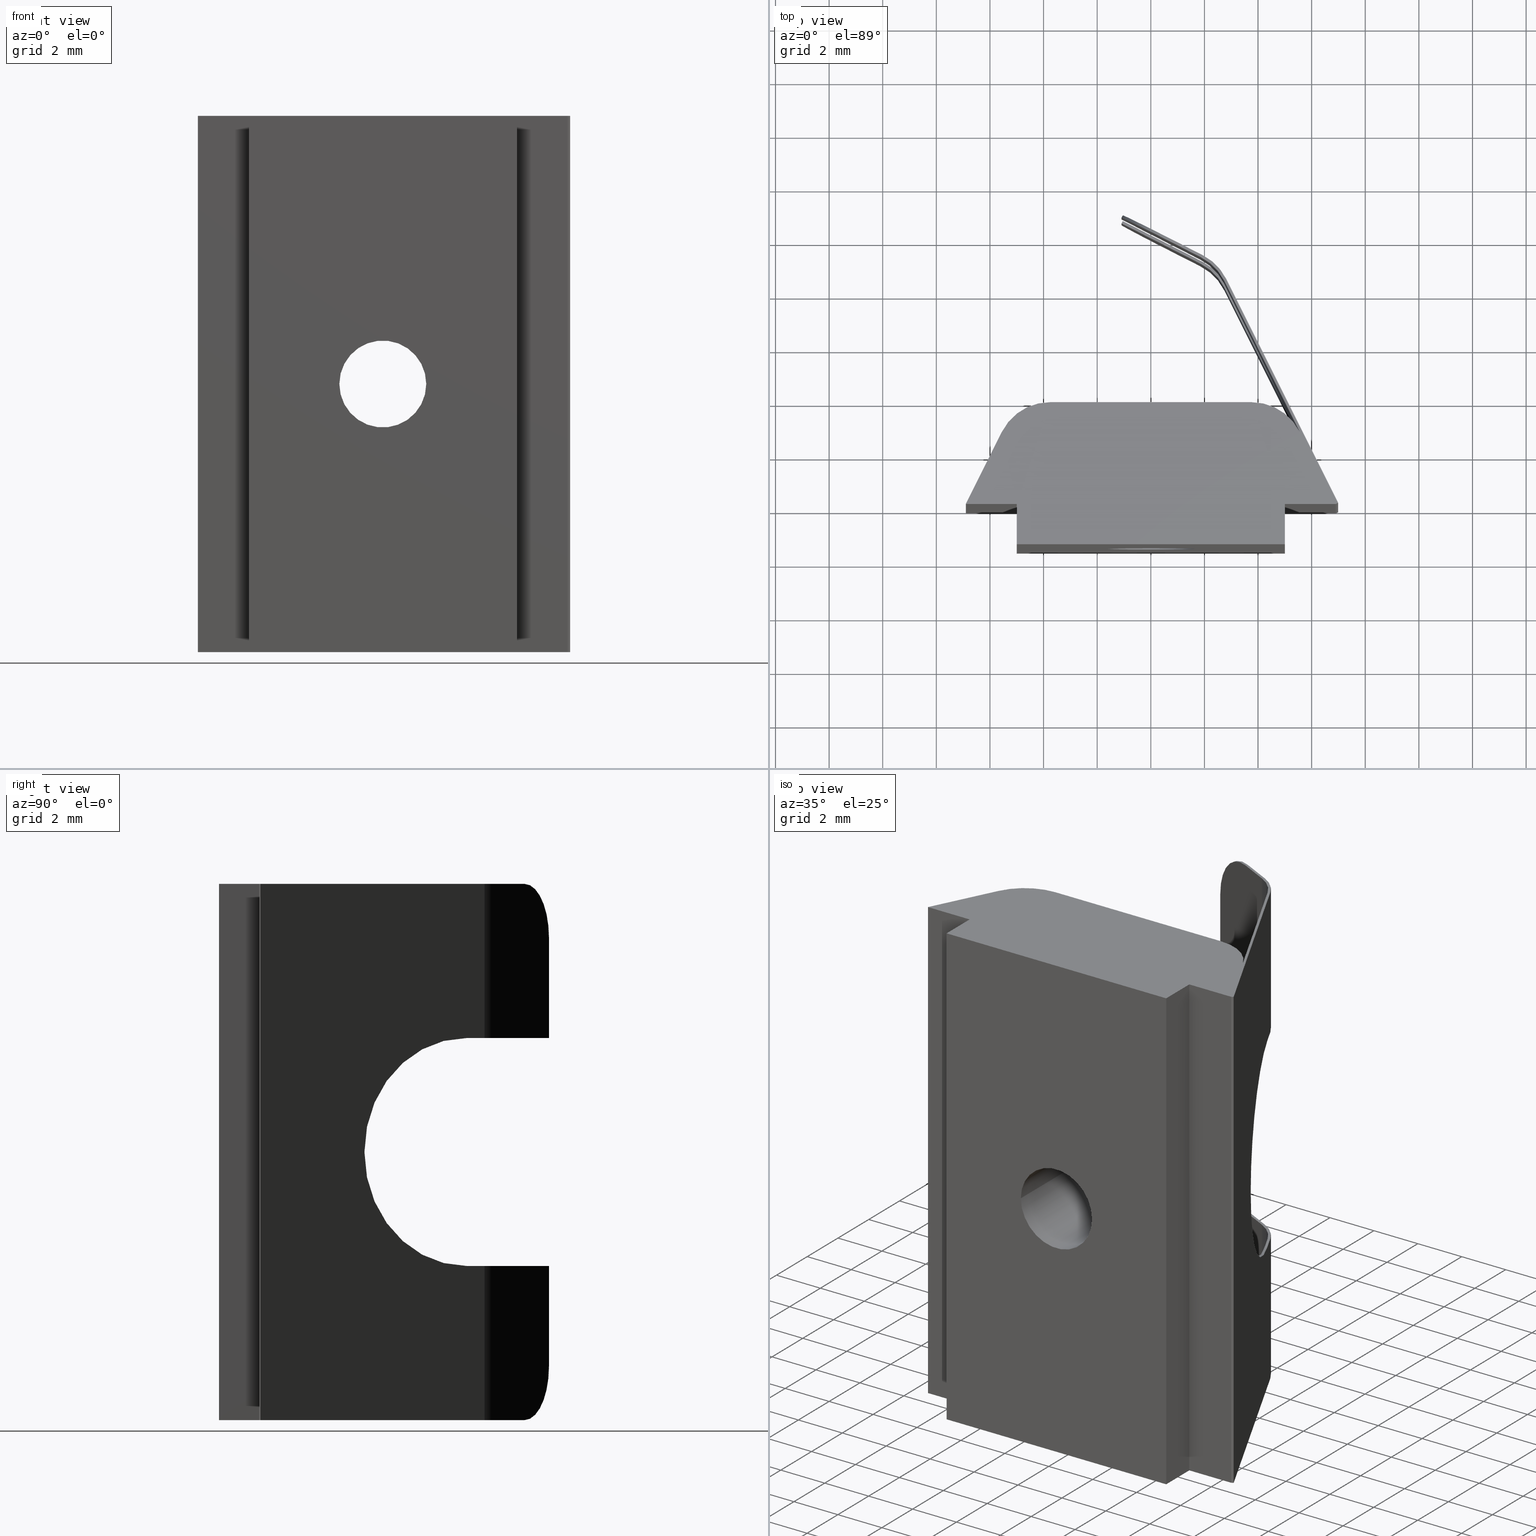
[diagram: canonical four-view strip — front | top / right | iso, engineering-drawing reading convention]
A machine part, canonical four-view strip (front | top / right | iso — engineering-drawing reading convention). The complete STEP part file that produces these views, byte-faithful:
ISO-10303-21;
HEADER;
/* Generated by software containing ST-Developer
 * from STEP Tools, Inc. (www.steptools.com) 
 */

FILE_DESCRIPTION(
/* description */ ('CURSORE M4 13.8X20 CAVA10 CON MOLLA'),
/* implementation_level */ '2;1');

FILE_NAME(
/* name */ 
'C:\\Users\\tecnico7\\Desktop\\tavole temporanee\\CDDCU0000061.stp',
/* time_stamp */ '2022-11-16T15:48:41+01:00',
/* author */ ('tecnico7'),
/* organization */ (''),
/* preprocessor_version */ 'ST-DEVELOPER v18.1',
/* originating_system */ 'Autodesk Inventor 2022',
/* authorisation */ '');

FILE_SCHEMA (('AUTOMOTIVE_DESIGN { 1 0 10303 214 3 1 1 }'));
ENDSEC;

DATA;
#10=MECHANICAL_DESIGN_GEOMETRIC_PRESENTATION_REPRESENTATION('',(#13),#1014);
#11=SHAPE_REPRESENTATION_RELATIONSHIP('SRR','None',#1021,#12);
#12=ADVANCED_BREP_SHAPE_REPRESENTATION('',(#14),#1013);
#13=STYLED_ITEM('',(#1030),#14);
#14=MANIFOLD_SOLID_BREP('Solido1',#595);
#15=FACE_BOUND('',#90,.T.);
#16=FACE_BOUND('',#97,.T.);
#17=(
BOUNDED_SURFACE()
B_SPLINE_SURFACE(1,2,((#872,#873,#874,#875,#876),(#877,#878,#879,#880,#881)),
 .UNSPECIFIED.,.F.,.F.,.F.)
B_SPLINE_SURFACE_WITH_KNOTS((2,2),(3,2,3),(0.714815187052997,1.21354719386139),
(-2.92062841558503E-16,1.5707963267949,3.14159265358979),.UNSPECIFIED.)
GEOMETRIC_REPRESENTATION_ITEM()
RATIONAL_B_SPLINE_SURFACE(((1.,0.707106781186547,1.,0.707106781186547,1.),
(1.,0.707106781186547,1.,0.707106781186547,1.)))
REPRESENTATION_ITEM('')
SURFACE()
);
#18=PLANE('',#621);
#19=PLANE('',#624);
#20=PLANE('',#629);
#21=PLANE('',#636);
#22=PLANE('',#638);
#23=PLANE('',#640);
#24=PLANE('',#642);
#25=PLANE('',#643);
#26=PLANE('',#646);
#27=PLANE('',#647);
#28=PLANE('',#653);
#29=PLANE('',#654);
#30=PLANE('',#657);
#31=PLANE('',#658);
#32=PLANE('',#661);
#33=PLANE('',#662);
#34=PLANE('',#663);
#35=PLANE('',#664);
#36=PLANE('',#665);
#37=PLANE('',#666);
#38=FACE_OUTER_BOUND('',#68,.T.);
#39=FACE_OUTER_BOUND('',#69,.T.);
#40=FACE_OUTER_BOUND('',#70,.T.);
#41=FACE_OUTER_BOUND('',#71,.T.);
#42=FACE_OUTER_BOUND('',#72,.T.);
#43=FACE_OUTER_BOUND('',#73,.T.);
#44=FACE_OUTER_BOUND('',#74,.T.);
#45=FACE_OUTER_BOUND('',#75,.T.);
#46=FACE_OUTER_BOUND('',#76,.T.);
#47=FACE_OUTER_BOUND('',#77,.T.);
#48=FACE_OUTER_BOUND('',#78,.T.);
#49=FACE_OUTER_BOUND('',#79,.T.);
#50=FACE_OUTER_BOUND('',#80,.T.);
#51=FACE_OUTER_BOUND('',#81,.T.);
#52=FACE_OUTER_BOUND('',#82,.T.);
#53=FACE_OUTER_BOUND('',#83,.T.);
#54=FACE_OUTER_BOUND('',#84,.T.);
#55=FACE_OUTER_BOUND('',#85,.T.);
#56=FACE_OUTER_BOUND('',#86,.T.);
#57=FACE_OUTER_BOUND('',#87,.T.);
#58=FACE_OUTER_BOUND('',#88,.T.);
#59=FACE_OUTER_BOUND('',#89,.T.);
#60=FACE_OUTER_BOUND('',#91,.T.);
#61=FACE_OUTER_BOUND('',#92,.T.);
#62=FACE_OUTER_BOUND('',#93,.T.);
#63=FACE_OUTER_BOUND('',#94,.T.);
#64=FACE_OUTER_BOUND('',#95,.T.);
#65=FACE_OUTER_BOUND('',#96,.T.);
#66=FACE_OUTER_BOUND('',#98,.T.);
#67=FACE_OUTER_BOUND('',#99,.T.);
#68=EDGE_LOOP('',(#388,#389,#390,#391));
#69=EDGE_LOOP('',(#392,#393,#394,#395,#396,#397,#398,#399));
#70=EDGE_LOOP('',(#400,#401,#402,#403,#404,#405,#406,#407));
#71=EDGE_LOOP('',(#408,#409,#410,#411));
#72=EDGE_LOOP('',(#412,#413,#414,#415,#416,#417,#418,#419));
#73=EDGE_LOOP('',(#420,#421,#422,#423));
#74=EDGE_LOOP('',(#424,#425,#426,#427));
#75=EDGE_LOOP('',(#428,#429,#430,#431));
#76=EDGE_LOOP('',(#432,#433,#434,#435,#436));
#77=EDGE_LOOP('',(#437,#438,#439,#440,#441));
#78=EDGE_LOOP('',(#442,#443,#444,#445,#446));
#79=EDGE_LOOP('',(#447,#448,#449,#450));
#80=EDGE_LOOP('',(#451,#452,#453,#454));
#81=EDGE_LOOP('',(#455,#456,#457,#458));
#82=EDGE_LOOP('',(#459,#460,#461,#462,#463,#464,#465,#466));
#83=EDGE_LOOP('',(#467,#468,#469,#470,#471,#472,#473,#474,#475,#476,#477,
#478,#479,#480,#481,#482,#483));
#84=EDGE_LOOP('',(#484,#485,#486,#487));
#85=EDGE_LOOP('',(#488,#489,#490,#491));
#86=EDGE_LOOP('',(#492,#493,#494,#495,#496));
#87=EDGE_LOOP('',(#497,#498,#499,#500));
#88=EDGE_LOOP('',(#501,#502,#503,#504));
#89=EDGE_LOOP('',(#505,#506,#507,#508));
#90=EDGE_LOOP('',(#509));
#91=EDGE_LOOP('',(#510,#511,#512,#513,#514,#515,#516,#517,#518,#519,#520,
#521,#522,#523,#524,#525,#526));
#92=EDGE_LOOP('',(#527,#528,#529,#530));
#93=EDGE_LOOP('',(#531,#532,#533,#534));
#94=EDGE_LOOP('',(#535,#536,#537,#538));
#95=EDGE_LOOP('',(#539,#540,#541,#542));
#96=EDGE_LOOP('',(#543,#544,#545,#546));
#97=EDGE_LOOP('',(#547));
#98=EDGE_LOOP('',(#548,#549,#550,#551));
#99=EDGE_LOOP('',(#552,#553,#554,#555));
#100=LINE('',#836,#164);
#101=LINE('',#841,#165);
#102=LINE('',#843,#166);
#103=LINE('',#845,#167);
#104=LINE('',#849,#168);
#105=LINE('',#851,#169);
#106=LINE('',#853,#170);
#107=LINE('',#858,#171);
#108=LINE('',#862,#172);
#109=LINE('',#864,#173);
#110=LINE('',#866,#174);
#111=LINE('',#870,#175);
#112=LINE('',#871,#176);
#113=LINE('',#886,#177);
#114=LINE('',#888,#178);
#115=LINE('',#890,#179);
#116=LINE('',#892,#180);
#117=LINE('',#893,#181);
#118=LINE('',#896,#182);
#119=LINE('',#899,#183);
#120=LINE('',#902,#184);
#121=LINE('',#907,#185);
#122=LINE('',#910,#186);
#123=LINE('',#913,#187);
#124=LINE('',#916,#188);
#125=LINE('',#919,#189);
#126=LINE('',#922,#190);
#127=LINE('',#925,#191);
#128=LINE('',#927,#192);
#129=LINE('',#930,#193);
#130=LINE('',#931,#194);
#131=LINE('',#934,#195);
#132=LINE('',#937,#196);
#133=LINE('',#940,#197);
#134=LINE('',#942,#198);
#135=LINE('',#943,#199);
#136=LINE('',#946,#200);
#137=LINE('',#947,#201);
#138=LINE('',#951,#202);
#139=LINE('',#955,#203);
#140=LINE('',#957,#204);
#141=LINE('',#959,#205);
#142=LINE('',#961,#206);
#143=LINE('',#963,#207);
#144=LINE('',#965,#208);
#145=LINE('',#966,#209);
#146=LINE('',#968,#210);
#147=LINE('',#974,#211);
#148=LINE('',#975,#212);
#149=LINE('',#979,#213);
#150=LINE('',#982,#214);
#151=LINE('',#983,#215);
#152=LINE('',#986,#216);
#153=LINE('',#988,#217);
#154=LINE('',#990,#218);
#155=LINE('',#992,#219);
#156=LINE('',#994,#220);
#157=LINE('',#996,#221);
#158=LINE('',#999,#222);
#159=LINE('',#1001,#223);
#160=LINE('',#1003,#224);
#161=LINE('',#1005,#225);
#162=LINE('',#1007,#226);
#163=LINE('',#1009,#227);
#164=VECTOR('',#673,1.621);
#165=VECTOR('',#678,10.);
#166=VECTOR('',#679,10.);
#167=VECTOR('',#680,10.);
#168=VECTOR('',#683,10.);
#169=VECTOR('',#684,10.);
#170=VECTOR('',#685,10.);
#171=VECTOR('',#690,10.);
#172=VECTOR('',#693,10.);
#173=VECTOR('',#694,10.);
#174=VECTOR('',#695,10.);
#175=VECTOR('',#698,10.);
#176=VECTOR('',#699,10.);
#177=VECTOR('',#706,10.);
#178=VECTOR('',#707,10.);
#179=VECTOR('',#708,10.);
#180=VECTOR('',#709,10.);
#181=VECTOR('',#710,10.);
#182=VECTOR('',#713,10.);
#183=VECTOR('',#716,10.);
#184=VECTOR('',#719,10.);
#185=VECTOR('',#726,10.);
#186=VECTOR('',#729,10.);
#187=VECTOR('',#732,10.);
#188=VECTOR('',#735,10.);
#189=VECTOR('',#738,10.);
#190=VECTOR('',#741,10.);
#191=VECTOR('',#744,10.);
#192=VECTOR('',#747,10.);
#193=VECTOR('',#750,10.);
#194=VECTOR('',#751,10.);
#195=VECTOR('',#754,10.);
#196=VECTOR('',#757,10.);
#197=VECTOR('',#760,10.);
#198=VECTOR('',#761,10.);
#199=VECTOR('',#762,10.);
#200=VECTOR('',#765,10.);
#201=VECTOR('',#766,10.);
#202=VECTOR('',#769,10.);
#203=VECTOR('',#772,10.);
#204=VECTOR('',#773,10.);
#205=VECTOR('',#774,10.);
#206=VECTOR('',#775,10.);
#207=VECTOR('',#776,10.);
#208=VECTOR('',#777,10.);
#209=VECTOR('',#778,10.);
#210=VECTOR('',#781,10.);
#211=VECTOR('',#790,10.);
#212=VECTOR('',#791,10.);
#213=VECTOR('',#796,10.);
#214=VECTOR('',#799,10.);
#215=VECTOR('',#800,10.);
#216=VECTOR('',#803,10.);
#217=VECTOR('',#804,10.);
#218=VECTOR('',#805,10.);
#219=VECTOR('',#806,10.);
#220=VECTOR('',#807,10.);
#221=VECTOR('',#808,10.);
#222=VECTOR('',#813,10.);
#223=VECTOR('',#816,10.);
#224=VECTOR('',#819,10.);
#225=VECTOR('',#822,10.);
#226=VECTOR('',#825,10.);
#227=VECTOR('',#828,10.);
#228=CIRCLE('',#619,1.621);
#229=CIRCLE('',#620,1.621);
#230=CIRCLE('',#622,2.);
#231=CIRCLE('',#623,2.);
#232=CIRCLE('',#625,2.);
#233=CIRCLE('',#626,2.);
#234=CIRCLE('',#627,4.25);
#235=CIRCLE('',#628,4.25);
#236=CIRCLE('',#631,2.);
#237=CIRCLE('',#633,2.);
#238=CIRCLE('',#635,2.);
#239=CIRCLE('',#637,2.);
#240=CIRCLE('',#639,2.);
#241=CIRCLE('',#641,2.);
#242=CIRCLE('',#645,2.);
#243=CIRCLE('',#648,2.);
#244=CIRCLE('',#649,2.);
#245=CIRCLE('',#652,2.);
#246=CIRCLE('',#656,2.);
#247=CIRCLE('',#659,2.);
#248=VERTEX_POINT('',#833);
#249=VERTEX_POINT('',#835);
#250=VERTEX_POINT('',#839);
#251=VERTEX_POINT('',#840);
#252=VERTEX_POINT('',#842);
#253=VERTEX_POINT('',#844);
#254=VERTEX_POINT('',#846);
#255=VERTEX_POINT('',#848);
#256=VERTEX_POINT('',#850);
#257=VERTEX_POINT('',#852);
#258=VERTEX_POINT('',#856);
#259=VERTEX_POINT('',#857);
#260=VERTEX_POINT('',#859);
#261=VERTEX_POINT('',#861);
#262=VERTEX_POINT('',#863);
#263=VERTEX_POINT('',#865);
#264=VERTEX_POINT('',#867);
#265=VERTEX_POINT('',#869);
#266=VERTEX_POINT('',#885);
#267=VERTEX_POINT('',#887);
#268=VERTEX_POINT('',#889);
#269=VERTEX_POINT('',#891);
#270=VERTEX_POINT('',#895);
#271=VERTEX_POINT('',#897);
#272=VERTEX_POINT('',#901);
#273=VERTEX_POINT('',#905);
#274=VERTEX_POINT('',#909);
#275=VERTEX_POINT('',#911);
#276=VERTEX_POINT('',#915);
#277=VERTEX_POINT('',#917);
#278=VERTEX_POINT('',#921);
#279=VERTEX_POINT('',#923);
#280=VERTEX_POINT('',#929);
#281=VERTEX_POINT('',#933);
#282=VERTEX_POINT('',#935);
#283=VERTEX_POINT('',#939);
#284=VERTEX_POINT('',#941);
#285=VERTEX_POINT('',#945);
#286=VERTEX_POINT('',#948);
#287=VERTEX_POINT('',#950);
#288=VERTEX_POINT('',#952);
#289=VERTEX_POINT('',#954);
#290=VERTEX_POINT('',#956);
#291=VERTEX_POINT('',#958);
#292=VERTEX_POINT('',#960);
#293=VERTEX_POINT('',#962);
#294=VERTEX_POINT('',#964);
#295=VERTEX_POINT('',#973);
#296=VERTEX_POINT('',#977);
#297=VERTEX_POINT('',#981);
#298=VERTEX_POINT('',#985);
#299=VERTEX_POINT('',#987);
#300=VERTEX_POINT('',#989);
#301=VERTEX_POINT('',#991);
#302=VERTEX_POINT('',#993);
#303=VERTEX_POINT('',#995);
#304=EDGE_CURVE('',#248,#248,#228,.T.);
#305=EDGE_CURVE('',#248,#249,#100,.T.);
#306=EDGE_CURVE('',#249,#249,#229,.T.);
#307=EDGE_CURVE('',#250,#251,#101,.T.);
#308=EDGE_CURVE('',#250,#252,#102,.T.);
#309=EDGE_CURVE('',#253,#252,#103,.T.);
#310=EDGE_CURVE('',#254,#253,#230,.T.);
#311=EDGE_CURVE('',#255,#254,#104,.T.);
#312=EDGE_CURVE('',#256,#255,#105,.T.);
#313=EDGE_CURVE('',#257,#256,#106,.T.);
#314=EDGE_CURVE('',#251,#257,#231,.T.);
#315=EDGE_CURVE('',#258,#259,#107,.T.);
#316=EDGE_CURVE('',#260,#258,#232,.T.);
#317=EDGE_CURVE('',#261,#260,#108,.T.);
#318=EDGE_CURVE('',#262,#261,#109,.T.);
#319=EDGE_CURVE('',#263,#262,#110,.T.);
#320=EDGE_CURVE('',#264,#263,#233,.T.);
#321=EDGE_CURVE('',#265,#264,#111,.T.);
#322=EDGE_CURVE('',#265,#259,#112,.T.);
#323=EDGE_CURVE('',#259,#250,#234,.T.);
#324=EDGE_CURVE('',#252,#265,#235,.T.);
#325=EDGE_CURVE('',#266,#264,#113,.T.);
#326=EDGE_CURVE('',#267,#266,#114,.T.);
#327=EDGE_CURVE('',#268,#267,#115,.T.);
#328=EDGE_CURVE('',#269,#268,#116,.T.);
#329=EDGE_CURVE('',#253,#269,#117,.T.);
#330=EDGE_CURVE('',#258,#270,#118,.T.);
#331=EDGE_CURVE('',#270,#271,#236,.T.);
#332=EDGE_CURVE('',#271,#260,#119,.T.);
#333=EDGE_CURVE('',#263,#272,#120,.T.);
#334=EDGE_CURVE('',#272,#266,#237,.T.);
#335=EDGE_CURVE('',#269,#273,#238,.T.);
#336=EDGE_CURVE('',#273,#254,#121,.T.);
#337=EDGE_CURVE('',#274,#271,#122,.T.);
#338=EDGE_CURVE('',#275,#274,#239,.T.);
#339=EDGE_CURVE('',#275,#261,#123,.T.);
#340=EDGE_CURVE('',#276,#262,#124,.T.);
#341=EDGE_CURVE('',#277,#276,#240,.T.);
#342=EDGE_CURVE('',#272,#277,#125,.T.);
#343=EDGE_CURVE('',#278,#273,#126,.T.);
#344=EDGE_CURVE('',#279,#278,#241,.T.);
#345=EDGE_CURVE('',#255,#279,#127,.T.);
#346=EDGE_CURVE('',#276,#275,#128,.T.);
#347=EDGE_CURVE('',#280,#279,#129,.T.);
#348=EDGE_CURVE('',#256,#280,#130,.T.);
#349=EDGE_CURVE('',#257,#281,#131,.T.);
#350=EDGE_CURVE('',#281,#282,#242,.T.);
#351=EDGE_CURVE('',#282,#251,#132,.T.);
#352=EDGE_CURVE('',#283,#282,#133,.T.);
#353=EDGE_CURVE('',#284,#283,#134,.T.);
#354=EDGE_CURVE('',#270,#284,#135,.T.);
#355=EDGE_CURVE('',#281,#285,#136,.T.);
#356=EDGE_CURVE('',#278,#285,#137,.T.);
#357=EDGE_CURVE('',#286,#268,#243,.T.);
#358=EDGE_CURVE('',#286,#287,#138,.T.);
#359=EDGE_CURVE('',#288,#287,#244,.T.);
#360=EDGE_CURVE('',#288,#289,#139,.T.);
#361=EDGE_CURVE('',#289,#290,#140,.T.);
#362=EDGE_CURVE('',#290,#291,#141,.T.);
#363=EDGE_CURVE('',#291,#292,#142,.T.);
#364=EDGE_CURVE('',#292,#293,#143,.T.);
#365=EDGE_CURVE('',#293,#294,#144,.T.);
#366=EDGE_CURVE('',#294,#283,#145,.T.);
#367=EDGE_CURVE('',#274,#277,#146,.T.);
#368=EDGE_CURVE('',#285,#280,#245,.T.);
#369=EDGE_CURVE('',#284,#295,#147,.T.);
#370=EDGE_CURVE('',#295,#294,#148,.T.);
#371=EDGE_CURVE('',#267,#296,#246,.T.);
#372=EDGE_CURVE('',#296,#286,#149,.T.);
#373=EDGE_CURVE('',#297,#296,#150,.T.);
#374=EDGE_CURVE('',#287,#297,#151,.T.);
#375=EDGE_CURVE('',#295,#298,#152,.T.);
#376=EDGE_CURVE('',#298,#299,#153,.T.);
#377=EDGE_CURVE('',#299,#300,#154,.T.);
#378=EDGE_CURVE('',#300,#301,#155,.T.);
#379=EDGE_CURVE('',#301,#302,#156,.T.);
#380=EDGE_CURVE('',#302,#303,#157,.T.);
#381=EDGE_CURVE('',#297,#303,#247,.T.);
#382=EDGE_CURVE('',#303,#288,#158,.T.);
#383=EDGE_CURVE('',#302,#289,#159,.T.);
#384=EDGE_CURVE('',#298,#293,#160,.T.);
#385=EDGE_CURVE('',#299,#292,#161,.T.);
#386=EDGE_CURVE('',#300,#291,#162,.T.);
#387=EDGE_CURVE('',#301,#290,#163,.T.);
#388=ORIENTED_EDGE('',*,*,#304,.F.);
#389=ORIENTED_EDGE('',*,*,#305,.T.);
#390=ORIENTED_EDGE('',*,*,#306,.F.);
#391=ORIENTED_EDGE('',*,*,#305,.F.);
#392=ORIENTED_EDGE('',*,*,#307,.F.);
#393=ORIENTED_EDGE('',*,*,#308,.T.);
#394=ORIENTED_EDGE('',*,*,#309,.F.);
#395=ORIENTED_EDGE('',*,*,#310,.F.);
#396=ORIENTED_EDGE('',*,*,#311,.F.);
#397=ORIENTED_EDGE('',*,*,#312,.F.);
#398=ORIENTED_EDGE('',*,*,#313,.F.);
#399=ORIENTED_EDGE('',*,*,#314,.F.);
#400=ORIENTED_EDGE('',*,*,#315,.F.);
#401=ORIENTED_EDGE('',*,*,#316,.F.);
#402=ORIENTED_EDGE('',*,*,#317,.F.);
#403=ORIENTED_EDGE('',*,*,#318,.F.);
#404=ORIENTED_EDGE('',*,*,#319,.F.);
#405=ORIENTED_EDGE('',*,*,#320,.F.);
#406=ORIENTED_EDGE('',*,*,#321,.F.);
#407=ORIENTED_EDGE('',*,*,#322,.T.);
#408=ORIENTED_EDGE('',*,*,#323,.F.);
#409=ORIENTED_EDGE('',*,*,#322,.F.);
#410=ORIENTED_EDGE('',*,*,#324,.F.);
#411=ORIENTED_EDGE('',*,*,#308,.F.);
#412=ORIENTED_EDGE('',*,*,#309,.T.);
#413=ORIENTED_EDGE('',*,*,#324,.T.);
#414=ORIENTED_EDGE('',*,*,#321,.T.);
#415=ORIENTED_EDGE('',*,*,#325,.F.);
#416=ORIENTED_EDGE('',*,*,#326,.F.);
#417=ORIENTED_EDGE('',*,*,#327,.F.);
#418=ORIENTED_EDGE('',*,*,#328,.F.);
#419=ORIENTED_EDGE('',*,*,#329,.F.);
#420=ORIENTED_EDGE('',*,*,#316,.T.);
#421=ORIENTED_EDGE('',*,*,#330,.T.);
#422=ORIENTED_EDGE('',*,*,#331,.T.);
#423=ORIENTED_EDGE('',*,*,#332,.T.);
#424=ORIENTED_EDGE('',*,*,#320,.T.);
#425=ORIENTED_EDGE('',*,*,#333,.T.);
#426=ORIENTED_EDGE('',*,*,#334,.T.);
#427=ORIENTED_EDGE('',*,*,#325,.T.);
#428=ORIENTED_EDGE('',*,*,#310,.T.);
#429=ORIENTED_EDGE('',*,*,#329,.T.);
#430=ORIENTED_EDGE('',*,*,#335,.T.);
#431=ORIENTED_EDGE('',*,*,#336,.T.);
#432=ORIENTED_EDGE('',*,*,#317,.T.);
#433=ORIENTED_EDGE('',*,*,#332,.F.);
#434=ORIENTED_EDGE('',*,*,#337,.F.);
#435=ORIENTED_EDGE('',*,*,#338,.F.);
#436=ORIENTED_EDGE('',*,*,#339,.T.);
#437=ORIENTED_EDGE('',*,*,#319,.T.);
#438=ORIENTED_EDGE('',*,*,#340,.F.);
#439=ORIENTED_EDGE('',*,*,#341,.F.);
#440=ORIENTED_EDGE('',*,*,#342,.F.);
#441=ORIENTED_EDGE('',*,*,#333,.F.);
#442=ORIENTED_EDGE('',*,*,#311,.T.);
#443=ORIENTED_EDGE('',*,*,#336,.F.);
#444=ORIENTED_EDGE('',*,*,#343,.F.);
#445=ORIENTED_EDGE('',*,*,#344,.F.);
#446=ORIENTED_EDGE('',*,*,#345,.F.);
#447=ORIENTED_EDGE('',*,*,#318,.T.);
#448=ORIENTED_EDGE('',*,*,#339,.F.);
#449=ORIENTED_EDGE('',*,*,#346,.F.);
#450=ORIENTED_EDGE('',*,*,#340,.T.);
#451=ORIENTED_EDGE('',*,*,#312,.T.);
#452=ORIENTED_EDGE('',*,*,#345,.T.);
#453=ORIENTED_EDGE('',*,*,#347,.F.);
#454=ORIENTED_EDGE('',*,*,#348,.F.);
#455=ORIENTED_EDGE('',*,*,#314,.T.);
#456=ORIENTED_EDGE('',*,*,#349,.T.);
#457=ORIENTED_EDGE('',*,*,#350,.T.);
#458=ORIENTED_EDGE('',*,*,#351,.T.);
#459=ORIENTED_EDGE('',*,*,#307,.T.);
#460=ORIENTED_EDGE('',*,*,#351,.F.);
#461=ORIENTED_EDGE('',*,*,#352,.F.);
#462=ORIENTED_EDGE('',*,*,#353,.F.);
#463=ORIENTED_EDGE('',*,*,#354,.F.);
#464=ORIENTED_EDGE('',*,*,#330,.F.);
#465=ORIENTED_EDGE('',*,*,#315,.T.);
#466=ORIENTED_EDGE('',*,*,#323,.T.);
#467=ORIENTED_EDGE('',*,*,#350,.F.);
#468=ORIENTED_EDGE('',*,*,#355,.T.);
#469=ORIENTED_EDGE('',*,*,#356,.F.);
#470=ORIENTED_EDGE('',*,*,#343,.T.);
#471=ORIENTED_EDGE('',*,*,#335,.F.);
#472=ORIENTED_EDGE('',*,*,#328,.T.);
#473=ORIENTED_EDGE('',*,*,#357,.F.);
#474=ORIENTED_EDGE('',*,*,#358,.T.);
#475=ORIENTED_EDGE('',*,*,#359,.F.);
#476=ORIENTED_EDGE('',*,*,#360,.T.);
#477=ORIENTED_EDGE('',*,*,#361,.T.);
#478=ORIENTED_EDGE('',*,*,#362,.T.);
#479=ORIENTED_EDGE('',*,*,#363,.T.);
#480=ORIENTED_EDGE('',*,*,#364,.T.);
#481=ORIENTED_EDGE('',*,*,#365,.T.);
#482=ORIENTED_EDGE('',*,*,#366,.T.);
#483=ORIENTED_EDGE('',*,*,#352,.T.);
#484=ORIENTED_EDGE('',*,*,#338,.T.);
#485=ORIENTED_EDGE('',*,*,#367,.T.);
#486=ORIENTED_EDGE('',*,*,#341,.T.);
#487=ORIENTED_EDGE('',*,*,#346,.T.);
#488=ORIENTED_EDGE('',*,*,#368,.T.);
#489=ORIENTED_EDGE('',*,*,#347,.T.);
#490=ORIENTED_EDGE('',*,*,#344,.T.);
#491=ORIENTED_EDGE('',*,*,#356,.T.);
#492=ORIENTED_EDGE('',*,*,#313,.T.);
#493=ORIENTED_EDGE('',*,*,#348,.T.);
#494=ORIENTED_EDGE('',*,*,#368,.F.);
#495=ORIENTED_EDGE('',*,*,#355,.F.);
#496=ORIENTED_EDGE('',*,*,#349,.F.);
#497=ORIENTED_EDGE('',*,*,#369,.F.);
#498=ORIENTED_EDGE('',*,*,#353,.T.);
#499=ORIENTED_EDGE('',*,*,#366,.F.);
#500=ORIENTED_EDGE('',*,*,#370,.F.);
#501=ORIENTED_EDGE('',*,*,#357,.T.);
#502=ORIENTED_EDGE('',*,*,#327,.T.);
#503=ORIENTED_EDGE('',*,*,#371,.T.);
#504=ORIENTED_EDGE('',*,*,#372,.T.);
#505=ORIENTED_EDGE('',*,*,#372,.F.);
#506=ORIENTED_EDGE('',*,*,#373,.F.);
#507=ORIENTED_EDGE('',*,*,#374,.F.);
#508=ORIENTED_EDGE('',*,*,#358,.F.);
#509=ORIENTED_EDGE('',*,*,#306,.T.);
#510=ORIENTED_EDGE('',*,*,#331,.F.);
#511=ORIENTED_EDGE('',*,*,#354,.T.);
#512=ORIENTED_EDGE('',*,*,#369,.T.);
#513=ORIENTED_EDGE('',*,*,#375,.T.);
#514=ORIENTED_EDGE('',*,*,#376,.T.);
#515=ORIENTED_EDGE('',*,*,#377,.T.);
#516=ORIENTED_EDGE('',*,*,#378,.T.);
#517=ORIENTED_EDGE('',*,*,#379,.T.);
#518=ORIENTED_EDGE('',*,*,#380,.T.);
#519=ORIENTED_EDGE('',*,*,#381,.F.);
#520=ORIENTED_EDGE('',*,*,#373,.T.);
#521=ORIENTED_EDGE('',*,*,#371,.F.);
#522=ORIENTED_EDGE('',*,*,#326,.T.);
#523=ORIENTED_EDGE('',*,*,#334,.F.);
#524=ORIENTED_EDGE('',*,*,#342,.T.);
#525=ORIENTED_EDGE('',*,*,#367,.F.);
#526=ORIENTED_EDGE('',*,*,#337,.T.);
#527=ORIENTED_EDGE('',*,*,#359,.T.);
#528=ORIENTED_EDGE('',*,*,#374,.T.);
#529=ORIENTED_EDGE('',*,*,#381,.T.);
#530=ORIENTED_EDGE('',*,*,#382,.T.);
#531=ORIENTED_EDGE('',*,*,#382,.F.);
#532=ORIENTED_EDGE('',*,*,#380,.F.);
#533=ORIENTED_EDGE('',*,*,#383,.T.);
#534=ORIENTED_EDGE('',*,*,#360,.F.);
#535=ORIENTED_EDGE('',*,*,#375,.F.);
#536=ORIENTED_EDGE('',*,*,#370,.T.);
#537=ORIENTED_EDGE('',*,*,#365,.F.);
#538=ORIENTED_EDGE('',*,*,#384,.F.);
#539=ORIENTED_EDGE('',*,*,#376,.F.);
#540=ORIENTED_EDGE('',*,*,#384,.T.);
#541=ORIENTED_EDGE('',*,*,#364,.F.);
#542=ORIENTED_EDGE('',*,*,#385,.F.);
#543=ORIENTED_EDGE('',*,*,#377,.F.);
#544=ORIENTED_EDGE('',*,*,#385,.T.);
#545=ORIENTED_EDGE('',*,*,#363,.F.);
#546=ORIENTED_EDGE('',*,*,#386,.F.);
#547=ORIENTED_EDGE('',*,*,#304,.T.);
#548=ORIENTED_EDGE('',*,*,#378,.F.);
#549=ORIENTED_EDGE('',*,*,#386,.T.);
#550=ORIENTED_EDGE('',*,*,#362,.F.);
#551=ORIENTED_EDGE('',*,*,#387,.F.);
#552=ORIENTED_EDGE('',*,*,#379,.F.);
#553=ORIENTED_EDGE('',*,*,#387,.T.);
#554=ORIENTED_EDGE('',*,*,#361,.F.);
#555=ORIENTED_EDGE('',*,*,#383,.F.);
#556=CYLINDRICAL_SURFACE('',#618,1.621);
#557=CYLINDRICAL_SURFACE('',#630,2.);
#558=CYLINDRICAL_SURFACE('',#632,2.);
#559=CYLINDRICAL_SURFACE('',#634,2.);
#560=CYLINDRICAL_SURFACE('',#644,2.);
#561=CYLINDRICAL_SURFACE('',#650,2.);
#562=CYLINDRICAL_SURFACE('',#651,2.);
#563=CYLINDRICAL_SURFACE('',#655,2.);
#564=CYLINDRICAL_SURFACE('',#660,2.);
#565=ADVANCED_FACE('',(#38),#556,.F.);
#566=ADVANCED_FACE('',(#39),#18,.F.);
#567=ADVANCED_FACE('',(#40),#19,.F.);
#568=ADVANCED_FACE('',(#41),#17,.T.);
#569=ADVANCED_FACE('',(#42),#20,.T.);
#570=ADVANCED_FACE('',(#43),#557,.T.);
#571=ADVANCED_FACE('',(#44),#558,.F.);
#572=ADVANCED_FACE('',(#45),#559,.F.);
#573=ADVANCED_FACE('',(#46),#21,.T.);
#574=ADVANCED_FACE('',(#47),#22,.T.);
#575=ADVANCED_FACE('',(#48),#23,.T.);
#576=ADVANCED_FACE('',(#49),#24,.T.);
#577=ADVANCED_FACE('',(#50),#25,.T.);
#578=ADVANCED_FACE('',(#51),#560,.T.);
#579=ADVANCED_FACE('',(#52),#26,.T.);
#580=ADVANCED_FACE('',(#53),#27,.T.);
#581=ADVANCED_FACE('',(#54),#561,.T.);
#582=ADVANCED_FACE('',(#55),#562,.T.);
#583=ADVANCED_FACE('',(#56),#28,.T.);
#584=ADVANCED_FACE('',(#57),#29,.T.);
#585=ADVANCED_FACE('',(#58),#563,.T.);
#586=ADVANCED_FACE('',(#59,#15),#30,.T.);
#587=ADVANCED_FACE('',(#60),#31,.F.);
#588=ADVANCED_FACE('',(#61),#564,.T.);
#589=ADVANCED_FACE('',(#62),#32,.T.);
#590=ADVANCED_FACE('',(#63),#33,.T.);
#591=ADVANCED_FACE('',(#64),#34,.T.);
#592=ADVANCED_FACE('',(#65,#16),#35,.T.);
#593=ADVANCED_FACE('',(#66),#36,.T.);
#594=ADVANCED_FACE('',(#67),#37,.T.);
#595=CLOSED_SHELL('',(#565,#566,#567,#568,#569,#570,#571,#572,#573,#574,
#575,#576,#577,#578,#579,#580,#581,#582,#583,#584,#585,#586,#587,#588,#589,
#590,#591,#592,#593,#594));
#596=DERIVED_UNIT_ELEMENT(#599,1.);
#597=DERIVED_UNIT_ELEMENT(#1016,-3.);
#598=DIMENSIONAL_EXPONENTS(1.,0.,0.,0.,0.,0.,0.);
#599=(
CONVERSION_BASED_UNIT('gram',#601)
MASS_UNIT()
NAMED_UNIT(#598)
);
#600=(
MASS_UNIT()
NAMED_UNIT(*)
SI_UNIT(.KILO.,.GRAM.)
);
#601=MASS_MEASURE_WITH_UNIT(MASS_MEASURE(0.001),#600);
#602=DERIVED_UNIT((#596,#597));
#603=MEASURE_REPRESENTATION_ITEM('density measure',
POSITIVE_RATIO_MEASURE(7.85),#602);
#604=PROPERTY_DEFINITION_REPRESENTATION(#609,#606);
#605=PROPERTY_DEFINITION_REPRESENTATION(#610,#607);
#606=REPRESENTATION('material name',(#608),#1013);
#607=REPRESENTATION('density',(#603),#1013);
#608=DESCRIPTIVE_REPRESENTATION_ITEM('Acciaio S235JR','Acciaio S235JR');
#609=PROPERTY_DEFINITION('material property','material name',#1023);
#610=PROPERTY_DEFINITION('material property','density of part',#1023);
#611=DATE_TIME_ROLE('creation_date');
#612=APPLIED_DATE_AND_TIME_ASSIGNMENT(#613,#611,(#1023));
#613=DATE_AND_TIME(#614,#615);
#614=CALENDAR_DATE(2022,24,1);
#615=LOCAL_TIME(0,0,0.,#616);
#616=COORDINATED_UNIVERSAL_TIME_OFFSET(0,0,.BEHIND.);
#617=AXIS2_PLACEMENT_3D('placement',#831,#667,#668);
#618=AXIS2_PLACEMENT_3D('',#832,#669,#670);
#619=AXIS2_PLACEMENT_3D('',#834,#671,#672);
#620=AXIS2_PLACEMENT_3D('',#837,#674,#675);
#621=AXIS2_PLACEMENT_3D('',#838,#676,#677);
#622=AXIS2_PLACEMENT_3D('',#847,#681,#682);
#623=AXIS2_PLACEMENT_3D('',#854,#686,#687);
#624=AXIS2_PLACEMENT_3D('',#855,#688,#689);
#625=AXIS2_PLACEMENT_3D('',#860,#691,#692);
#626=AXIS2_PLACEMENT_3D('',#868,#696,#697);
#627=AXIS2_PLACEMENT_3D('',#882,#700,#701);
#628=AXIS2_PLACEMENT_3D('',#883,#702,#703);
#629=AXIS2_PLACEMENT_3D('',#884,#704,#705);
#630=AXIS2_PLACEMENT_3D('',#894,#711,#712);
#631=AXIS2_PLACEMENT_3D('',#898,#714,#715);
#632=AXIS2_PLACEMENT_3D('',#900,#717,#718);
#633=AXIS2_PLACEMENT_3D('',#903,#720,#721);
#634=AXIS2_PLACEMENT_3D('',#904,#722,#723);
#635=AXIS2_PLACEMENT_3D('',#906,#724,#725);
#636=AXIS2_PLACEMENT_3D('',#908,#727,#728);
#637=AXIS2_PLACEMENT_3D('',#912,#730,#731);
#638=AXIS2_PLACEMENT_3D('',#914,#733,#734);
#639=AXIS2_PLACEMENT_3D('',#918,#736,#737);
#640=AXIS2_PLACEMENT_3D('',#920,#739,#740);
#641=AXIS2_PLACEMENT_3D('',#924,#742,#743);
#642=AXIS2_PLACEMENT_3D('',#926,#745,#746);
#643=AXIS2_PLACEMENT_3D('',#928,#748,#749);
#644=AXIS2_PLACEMENT_3D('',#932,#752,#753);
#645=AXIS2_PLACEMENT_3D('',#936,#755,#756);
#646=AXIS2_PLACEMENT_3D('',#938,#758,#759);
#647=AXIS2_PLACEMENT_3D('',#944,#763,#764);
#648=AXIS2_PLACEMENT_3D('',#949,#767,#768);
#649=AXIS2_PLACEMENT_3D('',#953,#770,#771);
#650=AXIS2_PLACEMENT_3D('',#967,#779,#780);
#651=AXIS2_PLACEMENT_3D('',#969,#782,#783);
#652=AXIS2_PLACEMENT_3D('',#970,#784,#785);
#653=AXIS2_PLACEMENT_3D('',#971,#786,#787);
#654=AXIS2_PLACEMENT_3D('',#972,#788,#789);
#655=AXIS2_PLACEMENT_3D('',#976,#792,#793);
#656=AXIS2_PLACEMENT_3D('',#978,#794,#795);
#657=AXIS2_PLACEMENT_3D('',#980,#797,#798);
#658=AXIS2_PLACEMENT_3D('',#984,#801,#802);
#659=AXIS2_PLACEMENT_3D('',#997,#809,#810);
#660=AXIS2_PLACEMENT_3D('',#998,#811,#812);
#661=AXIS2_PLACEMENT_3D('',#1000,#814,#815);
#662=AXIS2_PLACEMENT_3D('',#1002,#817,#818);
#663=AXIS2_PLACEMENT_3D('',#1004,#820,#821);
#664=AXIS2_PLACEMENT_3D('',#1006,#823,#824);
#665=AXIS2_PLACEMENT_3D('',#1008,#826,#827);
#666=AXIS2_PLACEMENT_3D('',#1010,#829,#830);
#667=DIRECTION('axis',(0.,0.,1.));
#668=DIRECTION('refdir',(1.,0.,0.));
#669=DIRECTION('center_axis',(0.,-1.,0.));
#670=DIRECTION('ref_axis',(1.,0.,0.));
#671=DIRECTION('center_axis',(0.,1.,0.));
#672=DIRECTION('ref_axis',(1.,0.,0.));
#673=DIRECTION('',(0.,1.,0.));
#674=DIRECTION('center_axis',(0.,-1.,0.));
#675=DIRECTION('ref_axis',(1.,0.,0.));
#676=DIRECTION('center_axis',(0.,-5.35863314309216E-16,1.));
#677=DIRECTION('ref_axis',(0.,-1.,-5.35863314309216E-16));
#678=DIRECTION('',(-0.447213595499958,0.894427190999916,4.79290718977497E-16));
#679=DIRECTION('',(-1.,0.,0.));
#680=DIRECTION('',(0.447213595499958,-0.894427190999916,-4.79290718977497E-16));
#681=DIRECTION('center_axis',(0.,5.35863314309216E-16,-1.));
#682=DIRECTION('ref_axis',(0.709848187401337,0.704354705275003,0.));
#683=DIRECTION('',(0.890925841718743,-0.454148813229485,-2.43361688246749E-16));
#684=DIRECTION('',(-0.454148813229479,-0.890925841718746,-4.77414474347136E-16));
#685=DIRECTION('',(-0.890925841718743,0.454148813229484,2.43361688246749E-16));
#686=DIRECTION('center_axis',(0.,-5.35863314309216E-16,1.));
#687=DIRECTION('ref_axis',(0.709848187401337,0.704354705275003,0.));
#688=DIRECTION('center_axis',(0.,5.35863314309216E-16,-1.));
#689=DIRECTION('ref_axis',(0.,1.,5.35863314309216E-16));
#690=DIRECTION('',(0.447213595499958,-0.894427190999916,-4.79290718977497E-16));
#691=DIRECTION('center_axis',(0.,5.35863314309216E-16,-1.));
#692=DIRECTION('ref_axis',(0.709848187401337,0.704354705275003,0.));
#693=DIRECTION('',(0.890925841718743,-0.454148813229484,-2.43361688246749E-16));
#694=DIRECTION('',(0.454148813229479,0.890925841718746,4.77414474347136E-16));
#695=DIRECTION('',(-0.890925841718743,0.454148813229485,2.43361688246749E-16));
#696=DIRECTION('center_axis',(0.,-5.35863314309216E-16,1.));
#697=DIRECTION('ref_axis',(0.709848187401337,0.704354705275003,0.));
#698=DIRECTION('',(-0.447213595499958,0.894427190999916,4.79290718977497E-16));
#699=DIRECTION('',(1.,0.,0.));
#700=DIRECTION('center_axis',(-0.894427190999916,-0.447213595499958,0.));
#701=DIRECTION('ref_axis',(0.447213595499958,-0.894427190999916,0.));
#702=DIRECTION('center_axis',(0.894427190999916,0.447213595499958,0.));
#703=DIRECTION('ref_axis',(0.,0.,1.));
#704=DIRECTION('center_axis',(-0.894427190999916,-0.447213595499958,0.));
#705=DIRECTION('ref_axis',(0.447213595499958,-0.894427190999916,0.));
#706=DIRECTION('',(0.,0.,1.));
#707=DIRECTION('',(-0.447213595499958,0.894427190999916,0.));
#708=DIRECTION('',(0.,0.,-1.));
#709=DIRECTION('',(0.447213595499958,-0.894427190999916,0.));
#710=DIRECTION('',(0.,0.,1.));
#711=DIRECTION('center_axis',(0.,0.,1.));
#712=DIRECTION('ref_axis',(0.709848187401337,0.704354705275003,0.));
#713=DIRECTION('',(0.,0.,-1.));
#714=DIRECTION('center_axis',(0.,0.,1.));
#715=DIRECTION('ref_axis',(0.709848187401337,0.704354705275003,0.));
#716=DIRECTION('',(0.,0.,1.));
#717=DIRECTION('center_axis',(0.,0.,1.));
#718=DIRECTION('ref_axis',(0.709848187401337,0.704354705275003,0.));
#719=DIRECTION('',(0.,0.,-1.));
#720=DIRECTION('center_axis',(0.,0.,-1.));
#721=DIRECTION('ref_axis',(0.709848187401337,0.704354705275003,0.));
#722=DIRECTION('center_axis',(0.,0.,1.));
#723=DIRECTION('ref_axis',(0.709848187401337,0.704354705275003,0.));
#724=DIRECTION('center_axis',(0.,0.,1.));
#725=DIRECTION('ref_axis',(0.709848187401337,0.704354705275003,0.));
#726=DIRECTION('',(0.,0.,-1.));
#727=DIRECTION('center_axis',(0.454148813229484,0.890925841718743,0.));
#728=DIRECTION('ref_axis',(-0.890925841718743,0.454148813229484,0.));
#729=DIRECTION('',(0.890925841718743,-0.454148813229484,0.));
#730=DIRECTION('center_axis',(-0.454148813229484,-0.890925841718743,0.));
#731=DIRECTION('ref_axis',(-0.629979704213658,0.321131705502387,-0.707106781186548));
#732=DIRECTION('',(0.,0.,1.));
#733=DIRECTION('center_axis',(-0.454148813229485,-0.890925841718743,0.));
#734=DIRECTION('ref_axis',(0.890925841718743,-0.454148813229485,0.));
#735=DIRECTION('',(0.,0.,1.));
#736=DIRECTION('center_axis',(0.454148813229485,0.890925841718743,0.));
#737=DIRECTION('ref_axis',(-0.629979704213658,0.321131705502387,-0.707106781186548));
#738=DIRECTION('',(-0.890925841718743,0.454148813229485,0.));
#739=DIRECTION('center_axis',(-0.454148813229485,-0.890925841718743,0.));
#740=DIRECTION('ref_axis',(0.890925841718743,-0.454148813229485,0.));
#741=DIRECTION('',(0.890925841718743,-0.454148813229485,0.));
#742=DIRECTION('center_axis',(0.454148813229485,0.890925841718743,0.));
#743=DIRECTION('ref_axis',(-0.629979704213659,0.321131705502387,0.707106781186547));
#744=DIRECTION('',(0.,0.,1.));
#745=DIRECTION('center_axis',(-0.890925841718746,0.454148813229479,0.));
#746=DIRECTION('ref_axis',(-0.454148813229479,-0.890925841718746,0.));
#747=DIRECTION('',(0.454148813229479,0.890925841718746,0.));
#748=DIRECTION('center_axis',(-0.890925841718746,0.454148813229479,0.));
#749=DIRECTION('ref_axis',(-0.454148813229479,-0.890925841718746,0.));
#750=DIRECTION('',(-0.454148813229479,-0.890925841718746,0.));
#751=DIRECTION('',(0.,0.,1.));
#752=DIRECTION('center_axis',(0.,0.,1.));
#753=DIRECTION('ref_axis',(0.709848187401337,0.704354705275003,0.));
#754=DIRECTION('',(0.,0.,1.));
#755=DIRECTION('center_axis',(0.,0.,-1.));
#756=DIRECTION('ref_axis',(0.709848187401337,0.704354705275003,0.));
#757=DIRECTION('',(0.,0.,-1.));
#758=DIRECTION('center_axis',(0.894427190999916,0.447213595499958,0.));
#759=DIRECTION('ref_axis',(-0.447213595499958,0.894427190999916,0.));
#760=DIRECTION('',(-0.447213595499958,0.894427190999916,0.));
#761=DIRECTION('',(0.,0.,1.));
#762=DIRECTION('',(0.447213595499958,-0.894427190999916,0.));
#763=DIRECTION('center_axis',(0.,0.,1.));
#764=DIRECTION('ref_axis',(1.,0.,0.));
#765=DIRECTION('',(-0.890925841718743,0.454148813229484,0.));
#766=DIRECTION('',(0.454148813229479,0.890925841718746,0.));
#767=DIRECTION('center_axis',(0.,0.,-1.));
#768=DIRECTION('ref_axis',(0.525731112119134,0.85065080835204,0.));
#769=DIRECTION('',(-1.,0.,0.));
#770=DIRECTION('center_axis',(0.,0.,-1.));
#771=DIRECTION('ref_axis',(-0.525731112119134,0.85065080835204,0.));
#772=DIRECTION('',(-0.447213595499958,-0.894427190999916,0.));
#773=DIRECTION('',(1.,1.46081976924363E-16,0.));
#774=DIRECTION('',(0.,-1.,0.));
#775=DIRECTION('',(1.,0.,0.));
#776=DIRECTION('',(0.,1.,0.));
#777=DIRECTION('',(1.,-1.46081976924363E-16,0.));
#778=DIRECTION('',(0.894427190999915,0.447213595499959,0.));
#779=DIRECTION('center_axis',(0.454148813229479,0.890925841718746,0.));
#780=DIRECTION('ref_axis',(-0.629979704213658,0.321131705502387,-0.707106781186548));
#781=DIRECTION('',(-0.454148813229479,-0.890925841718746,0.));
#782=DIRECTION('center_axis',(-0.454148813229479,-0.890925841718746,0.));
#783=DIRECTION('ref_axis',(-0.629979704213659,0.321131705502387,0.707106781186547));
#784=DIRECTION('center_axis',(-0.454148813229484,-0.890925841718743,0.));
#785=DIRECTION('ref_axis',(-0.629979704213659,0.321131705502387,0.707106781186547));
#786=DIRECTION('center_axis',(0.454148813229484,0.890925841718743,0.));
#787=DIRECTION('ref_axis',(-0.890925841718743,0.454148813229484,0.));
#788=DIRECTION('center_axis',(0.447213595499959,-0.894427190999915,0.));
#789=DIRECTION('ref_axis',(0.894427190999915,0.447213595499959,0.));
#790=DIRECTION('',(-0.894427190999915,-0.447213595499959,0.));
#791=DIRECTION('',(0.,0.,1.));
#792=DIRECTION('center_axis',(0.,0.,1.));
#793=DIRECTION('ref_axis',(0.525731112119134,0.85065080835204,0.));
#794=DIRECTION('center_axis',(0.,0.,1.));
#795=DIRECTION('ref_axis',(0.525731112119134,0.85065080835204,0.));
#796=DIRECTION('',(0.,0.,1.));
#797=DIRECTION('center_axis',(0.,1.,0.));
#798=DIRECTION('ref_axis',(-1.,0.,0.));
#799=DIRECTION('',(1.,0.,0.));
#800=DIRECTION('',(0.,0.,-1.));
#801=DIRECTION('center_axis',(0.,0.,1.));
#802=DIRECTION('ref_axis',(1.,0.,0.));
#803=DIRECTION('',(-1.,1.46081976924363E-16,0.));
#804=DIRECTION('',(0.,-1.,0.));
#805=DIRECTION('',(-1.,0.,0.));
#806=DIRECTION('',(0.,1.,0.));
#807=DIRECTION('',(-1.,-1.46081976924363E-16,0.));
#808=DIRECTION('',(0.447213595499958,0.894427190999916,0.));
#809=DIRECTION('center_axis',(0.,0.,1.));
#810=DIRECTION('ref_axis',(-0.525731112119134,0.85065080835204,0.));
#811=DIRECTION('center_axis',(0.,0.,1.));
#812=DIRECTION('ref_axis',(-0.525731112119134,0.85065080835204,0.));
#813=DIRECTION('',(0.,0.,1.));
#814=DIRECTION('center_axis',(-0.894427190999916,0.447213595499958,0.));
#815=DIRECTION('ref_axis',(-0.447213595499958,-0.894427190999916,0.));
#816=DIRECTION('',(0.,0.,1.));
#817=DIRECTION('center_axis',(-1.46081976924363E-16,-1.,0.));
#818=DIRECTION('ref_axis',(1.,-1.46081976924363E-16,0.));
#819=DIRECTION('',(0.,0.,1.));
#820=DIRECTION('center_axis',(1.,0.,0.));
#821=DIRECTION('ref_axis',(0.,1.,0.));
#822=DIRECTION('',(0.,0.,1.));
#823=DIRECTION('center_axis',(0.,-1.,0.));
#824=DIRECTION('ref_axis',(1.,0.,0.));
#825=DIRECTION('',(0.,0.,1.));
#826=DIRECTION('center_axis',(-1.,0.,0.));
#827=DIRECTION('ref_axis',(0.,-1.,0.));
#828=DIRECTION('',(0.,0.,1.));
#829=DIRECTION('center_axis',(1.46081976924363E-16,-1.,0.));
#830=DIRECTION('ref_axis',(1.,1.46081976924363E-16,0.));
#831=CARTESIAN_POINT('',(0.,0.,0.));
#832=CARTESIAN_POINT('Origin',(0.,25.7826708357418,10.));
#833=CARTESIAN_POINT('',(-1.621,-1.5,10.));
#834=CARTESIAN_POINT('Origin',(0.,-1.5,10.));
#835=CARTESIAN_POINT('',(-1.621,3.8,10.));
#836=CARTESIAN_POINT('',(-1.621,25.7826708357418,10.));
#837=CARTESIAN_POINT('Origin',(0.,3.8,10.));
#838=CARTESIAN_POINT('Origin',(0.,11.8677508186335,14.25));
#839=CARTESIAN_POINT('',(3.14976794385022,7.72407091004953,14.25));
#840=CARTESIAN_POINT('',(2.81159369843194,8.4004194008861,14.25));
#841=CARTESIAN_POINT('',(3.92589255537329,6.17182168700339,14.25));
#842=CARTESIAN_POINT('',(3.03796454497524,7.72407091004953,14.25));
#843=CARTESIAN_POINT('',(0.,7.72407091004953,14.25));
#844=CARTESIAN_POINT('',(2.73686532604853,8.32626934790295,14.25));
#845=CARTESIAN_POINT('',(1.60773903213181,10.5845219357364,14.25));
#846=CARTESIAN_POINT('',(1.85630857050767,9.21369384034052,14.25));
#847=CARTESIAN_POINT('Origin',(0.948010944048698,7.43184215690303,14.25));
#848=CARTESIAN_POINT('',(-1.09181148409751,10.7164959382952,14.25));
#849=CARTESIAN_POINT('',(-0.891405721934886,10.6143392437774,14.25));
#850=CARTESIAN_POINT('',(-1.04639660277456,10.8055885224671,14.25));
#851=CARTESIAN_POINT('',(-0.72360406354991,11.4388263650681,14.25));
#852=CARTESIAN_POINT('',(1.93103694289108,9.28784389332367,14.25));
#853=CARTESIAN_POINT('',(0.93586084282555,9.79513420149029,14.25));
#854=CARTESIAN_POINT('Origin',(1.02273931643211,7.50599220988618,14.25));
#855=CARTESIAN_POINT('Origin',(0.,7.72407091004953,5.75));
#856=CARTESIAN_POINT('',(2.81159369843194,8.4004194008861,5.75));
#857=CARTESIAN_POINT('',(3.14976794385022,7.72407091004953,5.75));
#858=CARTESIAN_POINT('',(4.75462853709009,4.51434972356981,5.74999999999999));
#859=CARTESIAN_POINT('',(1.93103694289108,9.28784389332367,5.75));
#860=CARTESIAN_POINT('Origin',(1.02273931643211,7.50599220988618,5.75));
#861=CARTESIAN_POINT('',(-1.04639660277456,10.8055885224671,5.75));
#862=CARTESIAN_POINT('',(1.77415404343522,9.36781483957709,5.75));
#863=CARTESIAN_POINT('',(-1.09181148409751,10.7164959382952,5.75));
#864=CARTESIAN_POINT('',(-1.56189726415958,9.79430577268933,5.75));
#865=CARTESIAN_POINT('',(1.85630857050767,9.21369384034052,5.75));
#866=CARTESIAN_POINT('',(-0.053112521325212,10.1870198818642,5.75));
#867=CARTESIAN_POINT('',(2.73686532604853,8.32626934790295,5.75));
#868=CARTESIAN_POINT('Origin',(0.948010944048698,7.43184215690303,5.75));
#869=CARTESIAN_POINT('',(3.03796454497524,7.72407091004953,5.75));
#870=CARTESIAN_POINT('',(2.4364750138486,8.92704997230281,5.75));
#871=CARTESIAN_POINT('',(0.,7.72407091004953,5.75));
#872=CARTESIAN_POINT('Ctrl Pts',(3.03796454497524,7.72407091004953,14.25));
#873=CARTESIAN_POINT('Ctrl Pts',(3.03796454497524,3.92275534829989,14.25));
#874=CARTESIAN_POINT('Ctrl Pts',(3.03796454497524,3.92275534829989,10.));
#875=CARTESIAN_POINT('Ctrl Pts',(3.03796454497524,3.92275534829989,5.75));
#876=CARTESIAN_POINT('Ctrl Pts',(3.03796454497524,7.72407091004953,5.75));
#877=CARTESIAN_POINT('Ctrl Pts',(5.15757557391091,7.72407091004953,14.25));
#878=CARTESIAN_POINT('Ctrl Pts',(5.15757557391091,3.92275534829989,14.25));
#879=CARTESIAN_POINT('Ctrl Pts',(5.15757557391091,3.92275534829989,10.));
#880=CARTESIAN_POINT('Ctrl Pts',(5.15757557391091,3.92275534829989,5.75));
#881=CARTESIAN_POINT('Ctrl Pts',(5.15757557391091,7.72407091004953,5.75));
#882=CARTESIAN_POINT('Origin',(3.14976794385022,7.72407091004953,10.));
#883=CARTESIAN_POINT('Origin',(3.03796454497524,7.72407091004953,10.));
#884=CARTESIAN_POINT('Origin',(2.442578391717,8.914843216566,0.));
#885=CARTESIAN_POINT('',(2.73686532604853,8.32626934790295,0.));
#886=CARTESIAN_POINT('',(2.73686532604853,8.32626934790295,0.));
#887=CARTESIAN_POINT('',(5.55278640450004,2.69442719099992,0.));
#888=CARTESIAN_POINT('',(6.9,-9.0205620750794E-16,0.));
#889=CARTESIAN_POINT('',(5.55278640450004,2.69442719099992,20.));
#890=CARTESIAN_POINT('',(5.55278640450004,2.69442719099992,0.));
#891=CARTESIAN_POINT('',(2.73686532604853,8.32626934790295,20.));
#892=CARTESIAN_POINT('',(6.9,-9.0205620750794E-16,20.));
#893=CARTESIAN_POINT('',(2.73686532604853,8.32626934790295,0.));
#894=CARTESIAN_POINT('Origin',(1.02273931643211,7.50599220988618,0.));
#895=CARTESIAN_POINT('',(2.81159369843194,8.4004194008861,0.));
#896=CARTESIAN_POINT('',(2.81159369843194,8.4004194008861,0.));
#897=CARTESIAN_POINT('',(1.93103694289108,9.28784389332367,0.));
#898=CARTESIAN_POINT('Origin',(1.02273931643211,7.50599220988618,0.));
#899=CARTESIAN_POINT('',(1.93103694289108,9.28784389332367,0.));
#900=CARTESIAN_POINT('Origin',(0.948010944048698,7.43184215690303,0.));
#901=CARTESIAN_POINT('',(1.85630857050767,9.21369384034052,0.));
#902=CARTESIAN_POINT('',(1.85630857050767,9.21369384034052,0.));
#903=CARTESIAN_POINT('Origin',(0.948010944048698,7.43184215690303,0.));
#904=CARTESIAN_POINT('Origin',(0.948010944048698,7.43184215690303,0.));
#905=CARTESIAN_POINT('',(1.85630857050767,9.21369384034052,20.));
#906=CARTESIAN_POINT('Origin',(0.948010944048698,7.43184215690303,20.));
#907=CARTESIAN_POINT('',(1.85630857050767,9.21369384034052,0.));
#908=CARTESIAN_POINT('Origin',(2.51730676410041,8.98899326954915,0.));
#909=CARTESIAN_POINT('',(0.735455080662925,9.89729089600812,0.));
#910=CARTESIAN_POINT('',(-1.04639660277456,10.8055885224671,0.));
#911=CARTESIAN_POINT('',(-1.04639660277456,10.8055885224671,2.));
#912=CARTESIAN_POINT('Origin',(0.735455080662919,9.89729089600811,2.));
#913=CARTESIAN_POINT('',(-1.04639660277456,10.8055885224671,0.));
#914=CARTESIAN_POINT('Origin',(-1.09181148409751,10.7164959382952,0.));
#915=CARTESIAN_POINT('',(-1.09181148409751,10.7164959382952,2.));
#916=CARTESIAN_POINT('',(-1.09181148409751,10.7164959382952,0.));
#917=CARTESIAN_POINT('',(0.690040199339977,9.80819831183625,0.));
#918=CARTESIAN_POINT('Origin',(0.690040199339983,9.80819831183626,2.));
#919=CARTESIAN_POINT('',(2.442578391717,8.914843216566,0.));
#920=CARTESIAN_POINT('Origin',(-1.09181148409751,10.7164959382952,0.));
#921=CARTESIAN_POINT('',(0.690040199339977,9.80819831183625,20.));
#922=CARTESIAN_POINT('',(2.442578391717,8.914843216566,20.));
#923=CARTESIAN_POINT('',(-1.09181148409751,10.7164959382952,18.));
#924=CARTESIAN_POINT('Origin',(0.690040199339983,9.80819831183626,18.));
#925=CARTESIAN_POINT('',(-1.09181148409751,10.7164959382952,0.));
#926=CARTESIAN_POINT('Origin',(-1.04639660277456,10.8055885224671,0.));
#927=CARTESIAN_POINT('',(-2.91306493792826,7.14365435185812,2.));
#928=CARTESIAN_POINT('Origin',(-1.04639660277456,10.8055885224671,0.));
#929=CARTESIAN_POINT('',(-1.04639660277456,10.8055885224671,18.));
#930=CARTESIAN_POINT('',(-2.91306493792826,7.14365435185812,18.));
#931=CARTESIAN_POINT('',(-1.04639660277456,10.8055885224671,0.));
#932=CARTESIAN_POINT('Origin',(1.02273931643211,7.50599220988618,0.));
#933=CARTESIAN_POINT('',(1.93103694289108,9.28784389332367,20.));
#934=CARTESIAN_POINT('',(1.93103694289108,9.28784389332367,0.));
#935=CARTESIAN_POINT('',(2.81159369843194,8.4004194008861,20.));
#936=CARTESIAN_POINT('Origin',(1.02273931643211,7.50599220988618,20.));
#937=CARTESIAN_POINT('',(2.81159369843194,8.4004194008861,0.));
#938=CARTESIAN_POINT('Origin',(6.98944271909999,0.0447213595499929,0.));
#939=CARTESIAN_POINT('',(6.98944271909999,0.0447213595499949,20.));
#940=CARTESIAN_POINT('',(2.51730676410041,8.98899326954915,20.));
#941=CARTESIAN_POINT('',(6.98944271909999,0.0447213595499949,0.));
#942=CARTESIAN_POINT('',(6.98944271909999,0.0447213595499949,0.));
#943=CARTESIAN_POINT('',(2.51730676410041,8.98899326954915,0.));
#944=CARTESIAN_POINT('Origin',(0.,1.04525454979326,20.));
#945=CARTESIAN_POINT('',(0.735455080662925,9.89729089600812,20.));
#946=CARTESIAN_POINT('',(-1.04639660277456,10.8055885224671,20.));
#947=CARTESIAN_POINT('',(-1.13121325449077,6.23535672539916,20.));
#948=CARTESIAN_POINT('',(3.76393202250021,3.8,20.));
#949=CARTESIAN_POINT('Origin',(3.76393202250021,1.8,20.));
#950=CARTESIAN_POINT('',(-3.76393202250021,3.8,20.));
#951=CARTESIAN_POINT('',(-5.,3.8,20.));
#952=CARTESIAN_POINT('',(-5.55278640450004,2.69442719099992,20.));
#953=CARTESIAN_POINT('Origin',(-3.76393202250021,1.8,20.));
#954=CARTESIAN_POINT('',(-6.9,-9.0205620750794E-16,20.));
#955=CARTESIAN_POINT('',(-6.9,-9.0205620750794E-16,20.));
#956=CARTESIAN_POINT('',(-5.,-6.24500451351651E-16,20.));
#957=CARTESIAN_POINT('',(-5.,-6.24500451351651E-16,20.));
#958=CARTESIAN_POINT('',(-5.,-1.5,20.));
#959=CARTESIAN_POINT('',(-5.,-1.5,20.));
#960=CARTESIAN_POINT('',(5.,-1.5,20.));
#961=CARTESIAN_POINT('',(5.,-1.5,20.));
#962=CARTESIAN_POINT('',(5.,-6.24500451351651E-16,20.));
#963=CARTESIAN_POINT('',(5.,-6.24500451351651E-16,20.));
#964=CARTESIAN_POINT('',(6.9,-9.0205620750794E-16,20.));
#965=CARTESIAN_POINT('',(6.9,-9.0205620750794E-16,20.));
#966=CARTESIAN_POINT('',(6.98944271909999,0.0447213595499949,20.));
#967=CARTESIAN_POINT('Origin',(-1.13121325449077,6.23535672539916,2.));
#968=CARTESIAN_POINT('',(-1.13121325449077,6.23535672539916,0.));
#969=CARTESIAN_POINT('Origin',(-1.13121325449077,6.23535672539916,18.));
#970=CARTESIAN_POINT('Origin',(0.735455080662919,9.89729089600811,18.));
#971=CARTESIAN_POINT('Origin',(2.51730676410041,8.98899326954915,0.));
#972=CARTESIAN_POINT('Origin',(6.9,-9.10729824887824E-16,0.));
#973=CARTESIAN_POINT('',(6.9,-9.0205620750794E-16,0.));
#974=CARTESIAN_POINT('',(6.98944271909999,0.0447213595499949,0.));
#975=CARTESIAN_POINT('',(6.9,-9.0205620750794E-16,0.));
#976=CARTESIAN_POINT('Origin',(3.76393202250021,1.8,0.));
#977=CARTESIAN_POINT('',(3.76393202250021,3.8,0.));
#978=CARTESIAN_POINT('Origin',(3.76393202250021,1.8,0.));
#979=CARTESIAN_POINT('',(3.76393202250021,3.8,0.));
#980=CARTESIAN_POINT('Origin',(5.,3.8,0.));
#981=CARTESIAN_POINT('',(-3.76393202250021,3.8,0.));
#982=CARTESIAN_POINT('',(-5.,3.8,0.));
#983=CARTESIAN_POINT('',(-3.76393202250021,3.8,0.));
#984=CARTESIAN_POINT('Origin',(1.7692705318027E-16,1.04525454979326,0.));
#985=CARTESIAN_POINT('',(5.,-6.24500451351651E-16,0.));
#986=CARTESIAN_POINT('',(6.9,-9.0205620750794E-16,0.));
#987=CARTESIAN_POINT('',(5.,-1.5,0.));
#988=CARTESIAN_POINT('',(5.,-6.24500451351651E-16,0.));
#989=CARTESIAN_POINT('',(-5.,-1.5,0.));
#990=CARTESIAN_POINT('',(5.,-1.5,0.));
#991=CARTESIAN_POINT('',(-5.,-6.24500451351651E-16,0.));
#992=CARTESIAN_POINT('',(-5.,-1.5,0.));
#993=CARTESIAN_POINT('',(-6.9,-9.0205620750794E-16,0.));
#994=CARTESIAN_POINT('',(-5.,-6.24500451351651E-16,0.));
#995=CARTESIAN_POINT('',(-5.55278640450004,2.69442719099992,0.));
#996=CARTESIAN_POINT('',(-6.9,-9.0205620750794E-16,0.));
#997=CARTESIAN_POINT('Origin',(-3.76393202250021,1.8,0.));
#998=CARTESIAN_POINT('Origin',(-3.76393202250021,1.8,0.));
#999=CARTESIAN_POINT('',(-5.55278640450004,2.69442719099992,0.));
#1000=CARTESIAN_POINT('Origin',(-5.,3.8,0.));
#1001=CARTESIAN_POINT('',(-6.9,-9.0205620750794E-16,0.));
#1002=CARTESIAN_POINT('Origin',(5.,-6.24500451351651E-16,0.));
#1003=CARTESIAN_POINT('',(5.,-6.24500451351651E-16,0.));
#1004=CARTESIAN_POINT('Origin',(5.,-1.5,0.));
#1005=CARTESIAN_POINT('',(5.,-1.5,0.));
#1006=CARTESIAN_POINT('Origin',(-5.,-1.5,0.));
#1007=CARTESIAN_POINT('',(-5.,-1.5,0.));
#1008=CARTESIAN_POINT('Origin',(-5.,-5.55111512312578E-16,0.));
#1009=CARTESIAN_POINT('',(-5.,-6.24500451351651E-16,0.));
#1010=CARTESIAN_POINT('Origin',(-6.9,-9.0205620750794E-16,0.));
#1011=UNCERTAINTY_MEASURE_WITH_UNIT(LENGTH_MEASURE(0.01),#1015,
'DISTANCE_ACCURACY_VALUE',
'Maximum model space distance between geometric entities at asserted c
onnectivities');
#1012=UNCERTAINTY_MEASURE_WITH_UNIT(LENGTH_MEASURE(0.01),#1015,
'DISTANCE_ACCURACY_VALUE',
'Maximum model space distance between geometric entities at asserted c
onnectivities');
#1013=(
GEOMETRIC_REPRESENTATION_CONTEXT(3)
GLOBAL_UNCERTAINTY_ASSIGNED_CONTEXT((#1011))
GLOBAL_UNIT_ASSIGNED_CONTEXT((#1015,#1017,#1018))
REPRESENTATION_CONTEXT('','3D')
);
#1014=(
GEOMETRIC_REPRESENTATION_CONTEXT(3)
GLOBAL_UNCERTAINTY_ASSIGNED_CONTEXT((#1012))
GLOBAL_UNIT_ASSIGNED_CONTEXT((#1015,#1017,#1018))
REPRESENTATION_CONTEXT('','3D')
);
#1015=(
LENGTH_UNIT()
NAMED_UNIT(*)
SI_UNIT(.MILLI.,.METRE.)
);
#1016=(
LENGTH_UNIT()
NAMED_UNIT(*)
SI_UNIT(.CENTI.,.METRE.)
);
#1017=(
NAMED_UNIT(*)
PLANE_ANGLE_UNIT()
SI_UNIT($,.RADIAN.)
);
#1018=(
NAMED_UNIT(*)
SI_UNIT($,.STERADIAN.)
SOLID_ANGLE_UNIT()
);
#1019=SHAPE_DEFINITION_REPRESENTATION(#1020,#1021);
#1020=PRODUCT_DEFINITION_SHAPE('',$,#1023);
#1021=SHAPE_REPRESENTATION('',(#617),#1013);
#1022=PRODUCT_DEFINITION_CONTEXT('part definition',#1027,'design');
#1023=PRODUCT_DEFINITION('CDDCU0000061','CDDCU0000061',#1024,#1022);
#1024=PRODUCT_DEFINITION_FORMATION('A',$,#1029);
#1025=PRODUCT_RELATED_PRODUCT_CATEGORY('CDDCU0000061','CDDCU0000061',(#1029));
#1026=APPLICATION_PROTOCOL_DEFINITION('international standard',
'automotive_design',2009,#1027);
#1027=APPLICATION_CONTEXT(
'Core Data for Automotive Mechanical Design Process');
#1028=PRODUCT_CONTEXT('part definition',#1027,'mechanical');
#1029=PRODUCT('CDDCU0000061','CDDCU0000061',
'CURSORE M4 13.8X20 CAVA10 CON MOLLA',(#1028));
#1030=PRESENTATION_STYLE_ASSIGNMENT((#1031));
#1031=SURFACE_STYLE_USAGE(.BOTH.,#1034);
#1032=SURFACE_STYLE_RENDERING_WITH_PROPERTIES($,#1038,(#1033));
#1033=SURFACE_STYLE_TRANSPARENT(0.);
#1034=SURFACE_SIDE_STYLE('',(#1035,#1032));
#1035=SURFACE_STYLE_FILL_AREA(#1036);
#1036=FILL_AREA_STYLE('',(#1037));
#1037=FILL_AREA_STYLE_COLOUR('',#1038);
#1038=COLOUR_RGB('',0.83921568627451,0.886274509803922,0.854901960784314);
ENDSEC;
END-ISO-10303-21;
